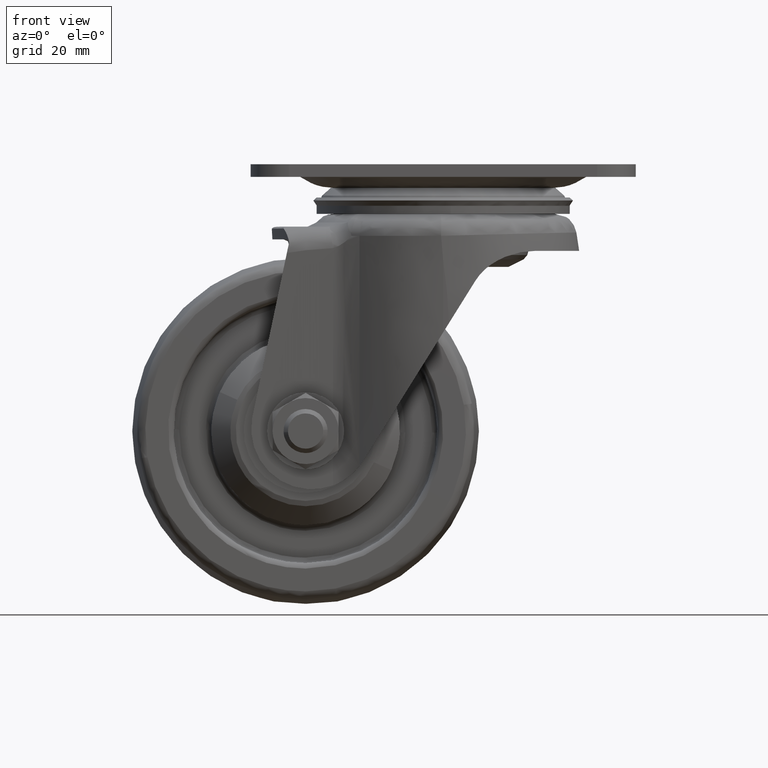
[diagram: clean part render]
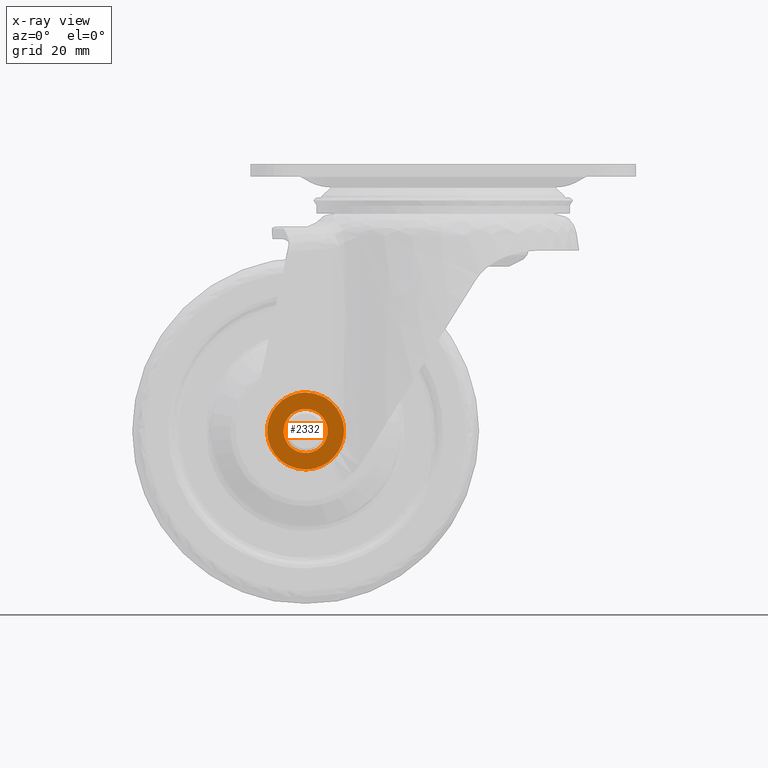
[diagram: x-ray — body ghosted, one internal face saturated and labeled with its STEP entity id]
A machine part, front view, then the same camera in x-ray: the body is ghosted and one INTERNAL B-rep face — a face not visible from any outside direction — is saturated and labeled: STEP entity #2332.
In plain terms, the highlighted face is a freeform B-spline surface patch.
Its self-contained STEP definition (entity closure, byte-faithful):
#2195=CARTESIAN_POINT('',(-32.693190097729477,-17.687357000000048,-56.199217972865277));
#2196=CARTESIAN_POINT('',(-32.693190097729477,-17.687357000000048,-40.800617651625458));
#2197=CARTESIAN_POINT('',(-17.306810152610030,-17.687357000000048,-56.199217972865277));
#2198=CARTESIAN_POINT('',(-17.306810152610030,-17.687357000000048,-40.800617651625458));
#2199=B_SPLINE_SURFACE_WITH_KNOTS('',1,1,((#2195,#2197),(#2196,#2198)),.UNSPECIFIED.,.F.,.F.,.U.,(2,2),(2,2),(0.0,15.398600321239829),(0.0,15.386379945119449),.UNSPECIFIED.);
#2200=CARTESIAN_POINT('',(-25.0,-17.687357000000048,-41.499918000000001));
#2201=VERTEX_POINT('',#2200);
#2202=CARTESIAN_POINT('',(-20.361660103201380,-17.687357000000048,-43.257227564568417));
#2203=VERTEX_POINT('',#2202);
#2204=CARTESIAN_POINT('',(-25.0,-17.687357000000048,-41.499918000000001));
#2205=CARTESIAN_POINT('',(-22.347937575581948,-17.687357000000056,-41.499918000000001));
#2206=CARTESIAN_POINT('',(-20.361660103201366,-17.687357000000056,-43.257227564568403));
#2214=(BOUNDED_CURVE()B_SPLINE_CURVE(2,(#2204,#2205,#2206),.UNSPECIFIED.,.F.,.U.)B_SPLINE_CURVE_WITH_KNOTS((3,3),(0.0,0.115779875363741),.UNSPECIFIED.)CURVE()GEOMETRIC_REPRESENTATION_ITEM()RATIONAL_B_SPLINE_CURVE((1.0,0.864355438523574,0.854350160419227))REPRESENTATION_ITEM(''));
#2215=EDGE_CURVE('',#2201,#2203,#2214,.T.);
#2216=ORIENTED_EDGE('',*,*,#2215,.T.);
#2217=CARTESIAN_POINT('',(-25.0,-17.687357000000048,-55.499918000000001));
#2218=VERTEX_POINT('',#2217);
#2219=CARTESIAN_POINT('',(-20.361660103201366,-17.687357000000056,-43.257227564568403));
#2220=CARTESIAN_POINT('',(-18.000000000000011,-17.687357000000045,-45.346647570244293));
#2221=CARTESIAN_POINT('',(-18.0,-17.687357000000048,-48.499918000000001));
#2222=CARTESIAN_POINT('',(-18.000000000000007,-17.687357000000045,-55.499917999999994));
#2223=CARTESIAN_POINT('',(-25.0,-17.687357000000048,-55.499918000000001));
#2231=(BOUNDED_CURVE()B_SPLINE_CURVE(2,(#2219,#2220,#2221,#2222,#2223),.UNSPECIFIED.,.F.,.U.)B_SPLINE_CURVE_WITH_KNOTS((3,2,3),(0.115779875363741,0.250000000000000,0.500000000000000),.UNSPECIFIED.)CURVE()GEOMETRIC_REPRESENTATION_ITEM()RATIONAL_B_SPLINE_CURVE((0.854350160419227,0.842751342662973,1.0,0.707106781186547,1.0))REPRESENTATION_ITEM(''));
#2232=EDGE_CURVE('',#2203,#2218,#2231,.T.);
#2233=ORIENTED_EDGE('',*,*,#2232,.T.);
#2234=CARTESIAN_POINT('',(-29.638339896798620,-17.687357000000048,-53.742608435431578));
#2235=VERTEX_POINT('',#2234);
#2236=CARTESIAN_POINT('',(-25.0,-17.687357000000048,-55.499918000000001));
#2237=CARTESIAN_POINT('',(-27.652062424418059,-17.687357000000052,-55.499918000000001));
#2238=CARTESIAN_POINT('',(-29.638339896798641,-17.687357000000052,-53.742608435431599));
#2246=(BOUNDED_CURVE()B_SPLINE_CURVE(2,(#2236,#2237,#2238),.UNSPECIFIED.,.F.,.U.)B_SPLINE_CURVE_WITH_KNOTS((3,3),(0.500000000000000,0.615779875363741),.UNSPECIFIED.)CURVE()GEOMETRIC_REPRESENTATION_ITEM()RATIONAL_B_SPLINE_CURVE((1.0,0.864355438523575,0.854350160419228))REPRESENTATION_ITEM(''));
#2247=EDGE_CURVE('',#2218,#2235,#2246,.T.);
#2248=ORIENTED_EDGE('',*,*,#2247,.T.);
#2249=CARTESIAN_POINT('',(-29.638339896798641,-17.687357000000052,-53.742608435431599));
#2250=CARTESIAN_POINT('',(-31.999999999999996,-17.687357000000045,-51.653188429755708));
#2251=CARTESIAN_POINT('',(-32.0,-17.687357000000048,-48.499918000000001));
#2252=CARTESIAN_POINT('',(-32.0,-17.687357000000045,-41.499917999999994));
#2253=CARTESIAN_POINT('',(-25.0,-17.687357000000048,-41.499918000000001));
#2261=(BOUNDED_CURVE()B_SPLINE_CURVE(2,(#2249,#2250,#2251,#2252,#2253),.UNSPECIFIED.,.F.,.U.)B_SPLINE_CURVE_WITH_KNOTS((3,2,3),(0.615779875363741,0.750000000000000,1.0),.UNSPECIFIED.)CURVE()GEOMETRIC_REPRESENTATION_ITEM()RATIONAL_B_SPLINE_CURVE((0.854350160419228,0.842751342662973,1.0,0.707106781186547,1.0))REPRESENTATION_ITEM(''));
#2262=EDGE_CURVE('',#2235,#2201,#2261,.T.);
#2263=ORIENTED_EDGE('',*,*,#2262,.T.);
#2264=EDGE_LOOP('',(#2216,#2233,#2248,#2263));
#2265=FACE_OUTER_BOUND('',#2264,.T.);
#2266=CARTESIAN_POINT('',(-25.0,-17.687357000000048,-52.499918000000008));
#2267=VERTEX_POINT('',#2266);
#2268=CARTESIAN_POINT('',(-28.992539193671711,-17.687357000000048,-48.744112158397030));
#2269=VERTEX_POINT('',#2268);
#2270=CARTESIAN_POINT('',(-25.0,-17.687357000000048,-52.499918000000008));
#2271=CARTESIAN_POINT('',(-28.762824267379543,-17.687357000000056,-52.499918000000008));
#2272=CARTESIAN_POINT('',(-28.992539193671711,-17.687357000000052,-48.744112158397044));
#2280=(BOUNDED_CURVE()B_SPLINE_CURVE(2,(#2270,#2271,#2272),.UNSPECIFIED.,.F.,.U.)B_SPLINE_CURVE_WITH_KNOTS((3,3),(0.500000000000000,0.739332962230835),.UNSPECIFIED.)CURVE()GEOMETRIC_REPRESENTATION_ITEM()RATIONAL_B_SPLINE_CURVE((1.0,0.719603993296209,0.976072041649342))REPRESENTATION_ITEM(''));
#2281=EDGE_CURVE('',#2267,#2269,#2280,.T.);
#2282=ORIENTED_EDGE('',*,*,#2281,.F.);
#2283=CARTESIAN_POINT('',(-21.007460806328289,-17.687357000000048,-48.255723841602972));
#2284=VERTEX_POINT('',#2283);
#2285=CARTESIAN_POINT('',(-21.007460806328282,-17.687357000000048,-48.255723841602965));
#2286=CARTESIAN_POINT('',(-20.999999999999996,-17.687357000000056,-48.377706946676483));
#2287=CARTESIAN_POINT('',(-21.0,-17.687357000000048,-48.499918000000001));
#2288=CARTESIAN_POINT('',(-21.000000000000004,-17.687357000000056,-52.499918000000015));
#2289=CARTESIAN_POINT('',(-25.0,-17.687357000000048,-52.499918000000008));
#2297=(BOUNDED_CURVE()B_SPLINE_CURVE(2,(#2285,#2286,#2287,#2288,#2289),.UNSPECIFIED.,.F.,.U.)B_SPLINE_CURVE_WITH_KNOTS((3,2,3),(0.239332962230835,0.250000000000000,0.500000000000000),.UNSPECIFIED.)CURVE()GEOMETRIC_REPRESENTATION_ITEM()RATIONAL_B_SPLINE_CURVE((0.976072041649342,0.987502787890339,1.0,0.707106781186548,1.0))REPRESENTATION_ITEM(''));
#2298=EDGE_CURVE('',#2284,#2267,#2297,.T.);
#2299=ORIENTED_EDGE('',*,*,#2298,.F.);
#2300=CARTESIAN_POINT('',(-25.0,-17.687357000000048,-44.499918000000001));
#2301=VERTEX_POINT('',#2300);
#2302=CARTESIAN_POINT('',(-25.0,-17.687357000000048,-44.499918000000001));
#2303=CARTESIAN_POINT('',(-21.237175732620464,-17.687357000000045,-44.499918000000001));
#2304=CARTESIAN_POINT('',(-21.007460806328293,-17.687357000000045,-48.255723841602965));
#2312=(BOUNDED_CURVE()B_SPLINE_CURVE(2,(#2302,#2303,#2304),.UNSPECIFIED.,.F.,.U.)B_SPLINE_CURVE_WITH_KNOTS((3,3),(0.0,0.239332962230835),.UNSPECIFIED.)CURVE()GEOMETRIC_REPRESENTATION_ITEM()RATIONAL_B_SPLINE_CURVE((1.0,0.719603993296209,0.976072041649341))REPRESENTATION_ITEM(''));
#2313=EDGE_CURVE('',#2301,#2284,#2312,.T.);
#2314=ORIENTED_EDGE('',*,*,#2313,.F.);
#2315=CARTESIAN_POINT('',(-28.992539193671711,-17.687357000000045,-48.744112158397030));
#2316=CARTESIAN_POINT('',(-28.999999999999996,-17.687357000000048,-48.622129053323519));
#2317=CARTESIAN_POINT('',(-29.0,-17.687357000000048,-48.499918000000001));
#2318=CARTESIAN_POINT('',(-29.0,-17.687357000000056,-44.499918000000001));
#2319=CARTESIAN_POINT('',(-25.0,-17.687357000000048,-44.499918000000001));
#2327=(BOUNDED_CURVE()B_SPLINE_CURVE(2,(#2315,#2316,#2317,#2318,#2319),.UNSPECIFIED.,.F.,.U.)B_SPLINE_CURVE_WITH_KNOTS((3,2,3),(0.739332962230836,0.750000000000000,1.0),.UNSPECIFIED.)CURVE()GEOMETRIC_REPRESENTATION_ITEM()RATIONAL_B_SPLINE_CURVE((0.976072041649342,0.987502787890339,1.0,0.707106781186548,1.0))REPRESENTATION_ITEM(''));
#2328=EDGE_CURVE('',#2269,#2301,#2327,.T.);
#2329=ORIENTED_EDGE('',*,*,#2328,.F.);
#2330=EDGE_LOOP('',(#2282,#2299,#2314,#2329));
#2331=FACE_BOUND('',#2330,.T.);
#2332=ADVANCED_FACE('',(#2265,#2331),#2199,.T.);